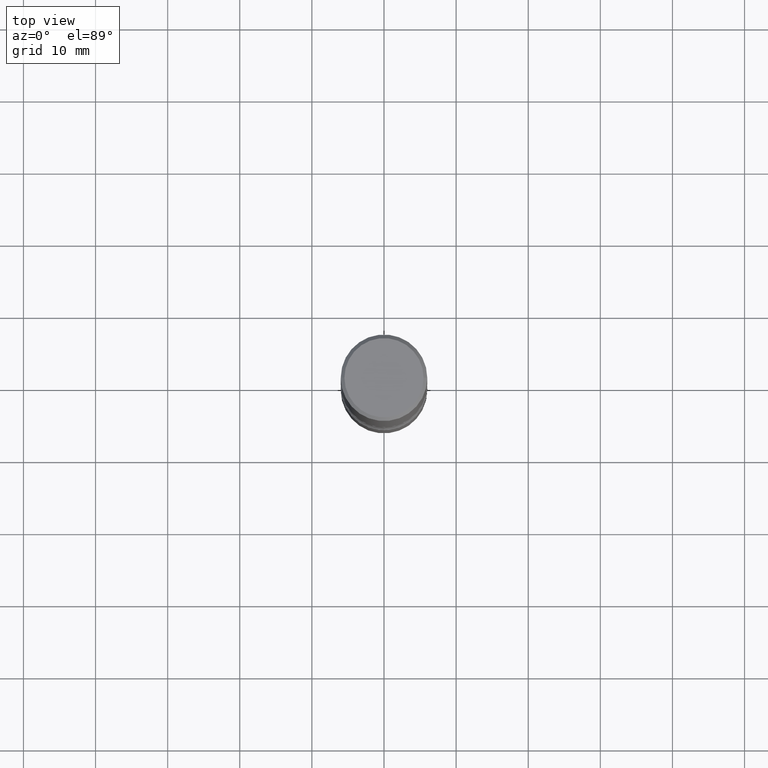
[diagram: clean part render]
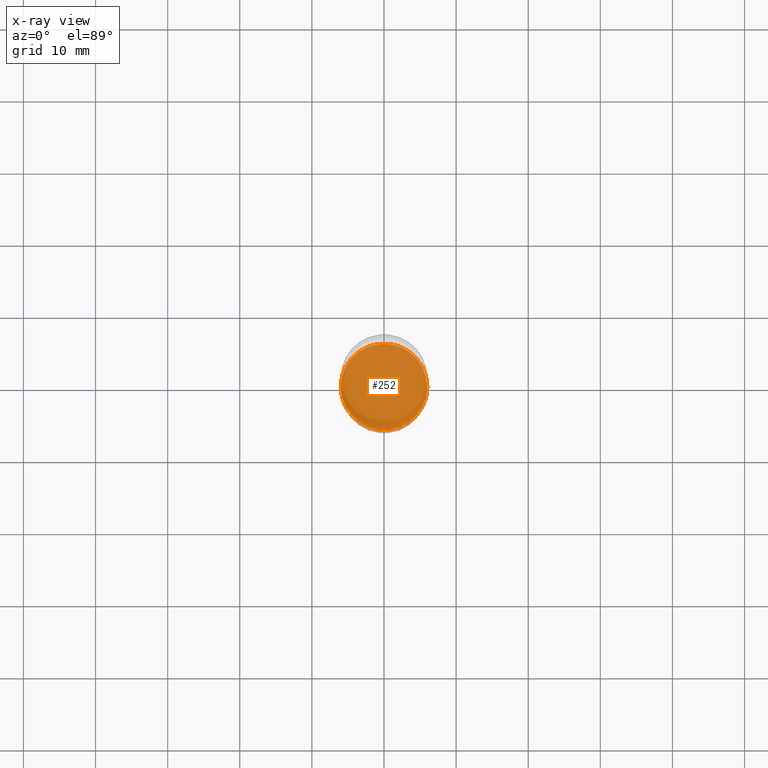
[diagram: x-ray — body ghosted, one internal face saturated and labeled with its STEP entity id]
A machine part, top view, then the same camera in x-ray: the body is ghosted and one INTERNAL B-rep face — a face not visible from any outside direction — is saturated and labeled: STEP entity #252.
In plain terms, the highlighted planar face has unit normal (0, -0, -1).
Its self-contained STEP definition (entity closure, byte-faithful):
#66 = DIRECTION ( 'NONE',  ( 2.438088387897960049E-29, -3.491481338843145188E-15, -1.000000000000000000 ) ) ;
#91 = EDGE_CURVE ( 'NONE', #558, #306, #423, .T. ) ;
#102 = CARTESIAN_POINT ( 'NONE',  ( 7.124628819939777829E-29, -1.017208173258562247E-14, -2.913400000000000212 ) ) ;
#121 = CARTESIAN_POINT ( 'NONE',  ( -0.2362000000000001321, -1.017754666637736977E-14, -2.913400000000000212 ) ) ;
#154 = CIRCLE ( 'NONE', #330, 0.2362000000000001321 ) ;
#162 = ORIENTED_EDGE ( 'NONE', *, *, #91, .T. ) ;
#184 = ORIENTED_EDGE ( 'NONE', *, *, #223, .T. ) ;
#207 = AXIS2_PLACEMENT_3D ( 'NONE', #526, #314, #483 ) ;
#223 = EDGE_CURVE ( 'NONE', #306, #558, #154, .T. ) ;
#252 = ADVANCED_FACE ( 'NONE', ( #287 ), #372, .F. ) ;
#287 = FACE_OUTER_BOUND ( 'NONE', #514, .T. ) ;
#306 = VERTEX_POINT ( 'NONE', #387 ) ;
#314 = DIRECTION ( 'NONE',  ( -2.445468806185136597E-29, 3.491481338843145583E-15, 1.000000000000000000 ) ) ;
#330 = AXIS2_PLACEMENT_3D ( 'NONE', #367, #494, #451 ) ;
#367 = CARTESIAN_POINT ( 'NONE',  ( 7.124628819939777829E-29, -1.017208173258562247E-14, -2.913400000000000212 ) ) ;
#372 = PLANE ( 'NONE',  #399 ) ;
#387 = CARTESIAN_POINT ( 'NONE',  ( 0.2362000000000001321, -1.182145751705511899E-14, -2.913400000000000212 ) ) ;
#399 = AXIS2_PLACEMENT_3D ( 'NONE', #102, #66, #501 ) ;
#423 = CIRCLE ( 'NONE', #207, 0.2362000000000001321 ) ;
#451 = DIRECTION ( 'NONE',  ( 1.000000000000000000, -6.982962677686269077E-15, 0.000000000000000000 ) ) ;
#483 = DIRECTION ( 'NONE',  ( 1.000000000000000000, -6.982962677686269077E-15, 0.000000000000000000 ) ) ;
#494 = DIRECTION ( 'NONE',  ( -2.445468806185136597E-29, 3.491481338843145583E-15, 1.000000000000000000 ) ) ;
#501 = DIRECTION ( 'NONE',  ( -1.000000000000000000, 6.982962677686265922E-15, -4.876176775795935793E-29 ) ) ;
#514 = EDGE_LOOP ( 'NONE', ( #184, #162 ) ) ;
#526 = CARTESIAN_POINT ( 'NONE',  ( 7.124628819939777829E-29, -1.017208173258562247E-14, -2.913400000000000212 ) ) ;
#558 = VERTEX_POINT ( 'NONE', #121 ) ;